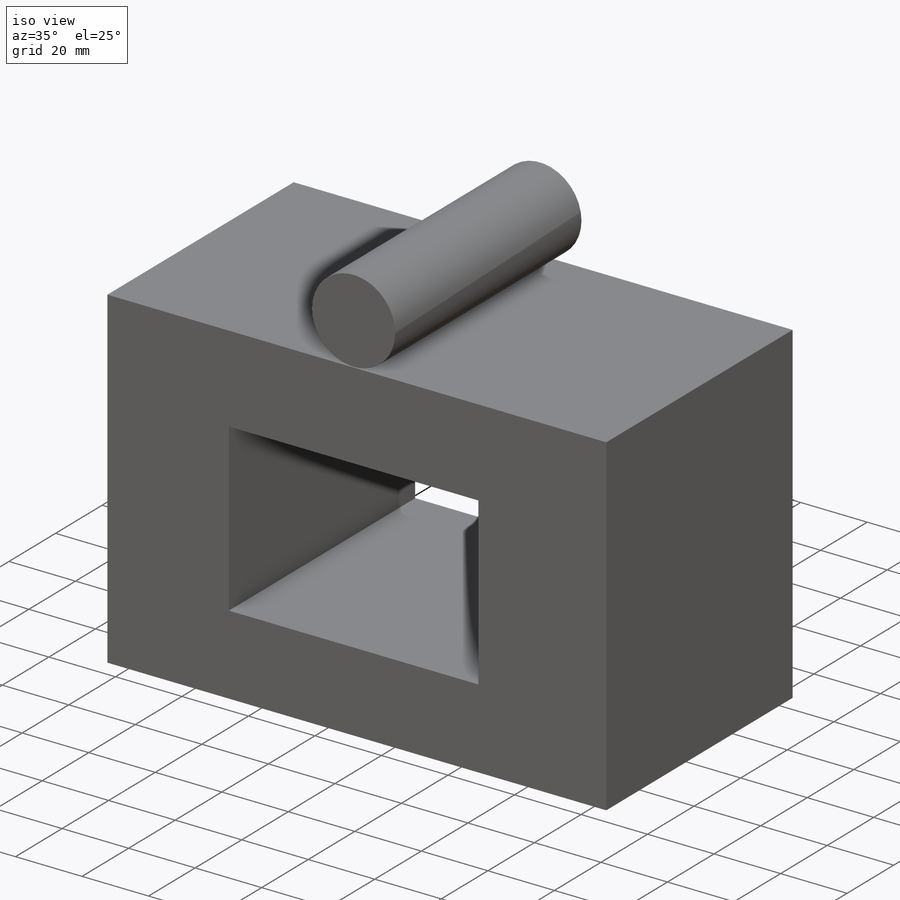
[diagram: iso view]
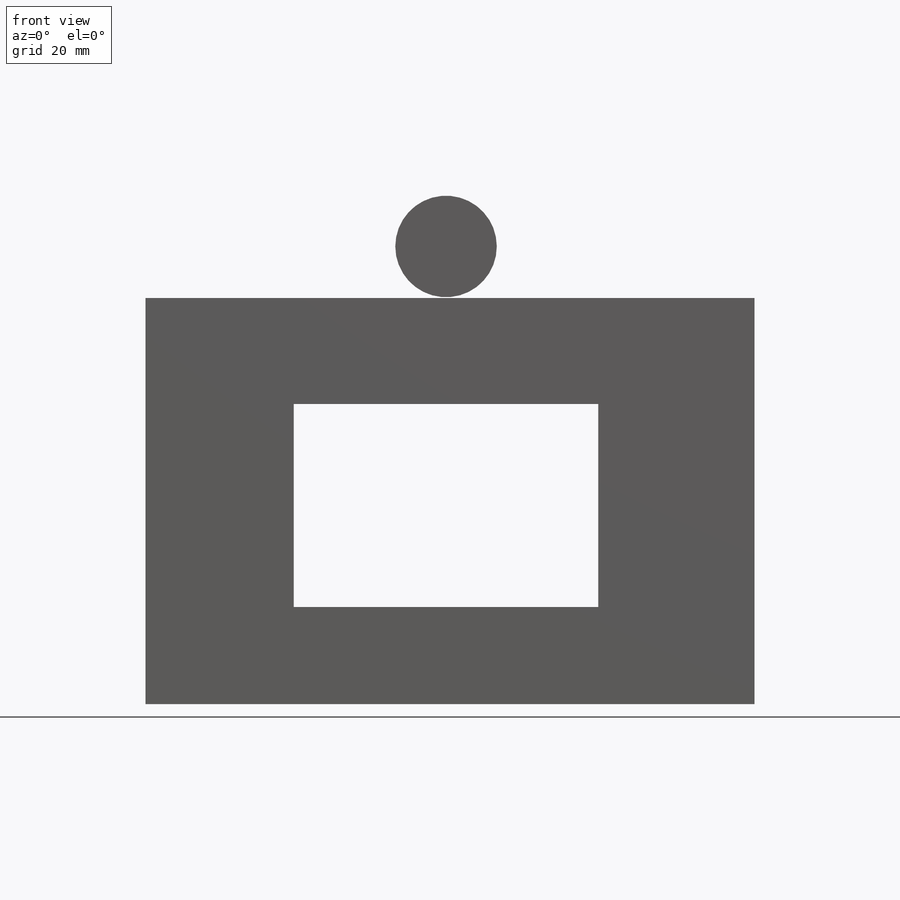
[diagram: front view]
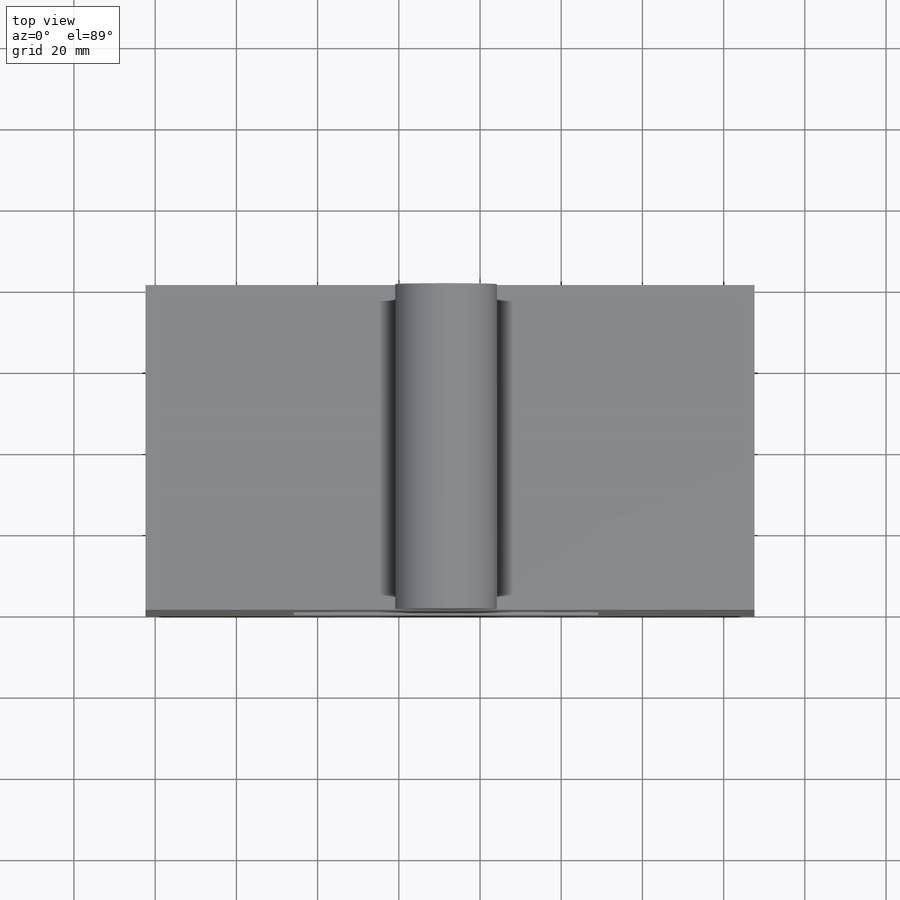
[diagram: top view]
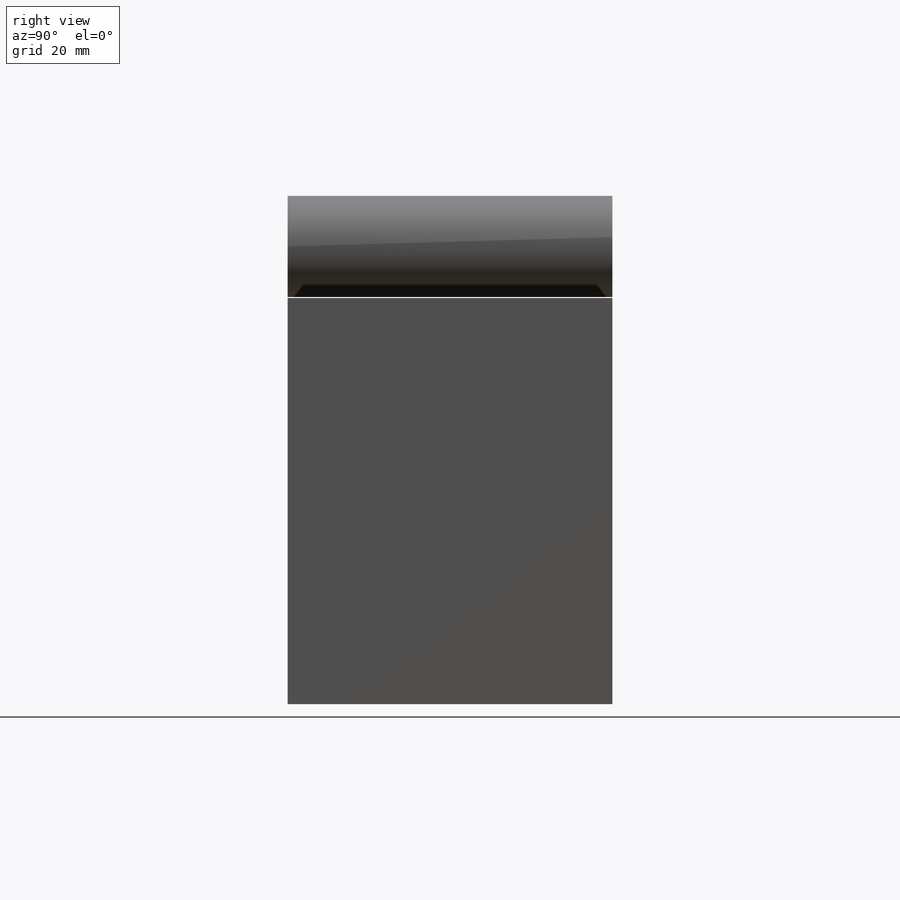
[diagram: right view]
SOLIDWORKS PART (.sldprt)
format: sldprt  version: not decoded by parser v0  size: 161,280 bytes
history: native  units: mm
features: plane x3, sketch x3, extrude x2, material x1 (+10 scaffold rows collapsed)
feature tree (19):
  scaffold x10  (default folders/planes/origin — collapsed)
  material  "Matériau <non spécifié>"
  plane  "Plan de face"
  plane  "Plan de dessus"
  plane  "Plan de droite"
  sketch  "Esquisse1"  dims[D1=100.0mm D2=150.0mm D3=75.0mm D4=50.0mm]
  extrude  "Boss.-Extru.1"  Depth=80mm
  sketch  "Esquisse3"  dims[D1=25.0mm D2=37.5mm D3=75.0mm]
  extrude  "Boss.-Extru.2"  Depth=80mm
  sketch  "Esquisse5"  dims[D1=~44.756216mm]
decode coverage: 5 of 5 modeling features carry decoded parameters
note: ~ marks probable driven/reference dimensions
note: suppression state not decoded; provenance and decode notes live in map.json
